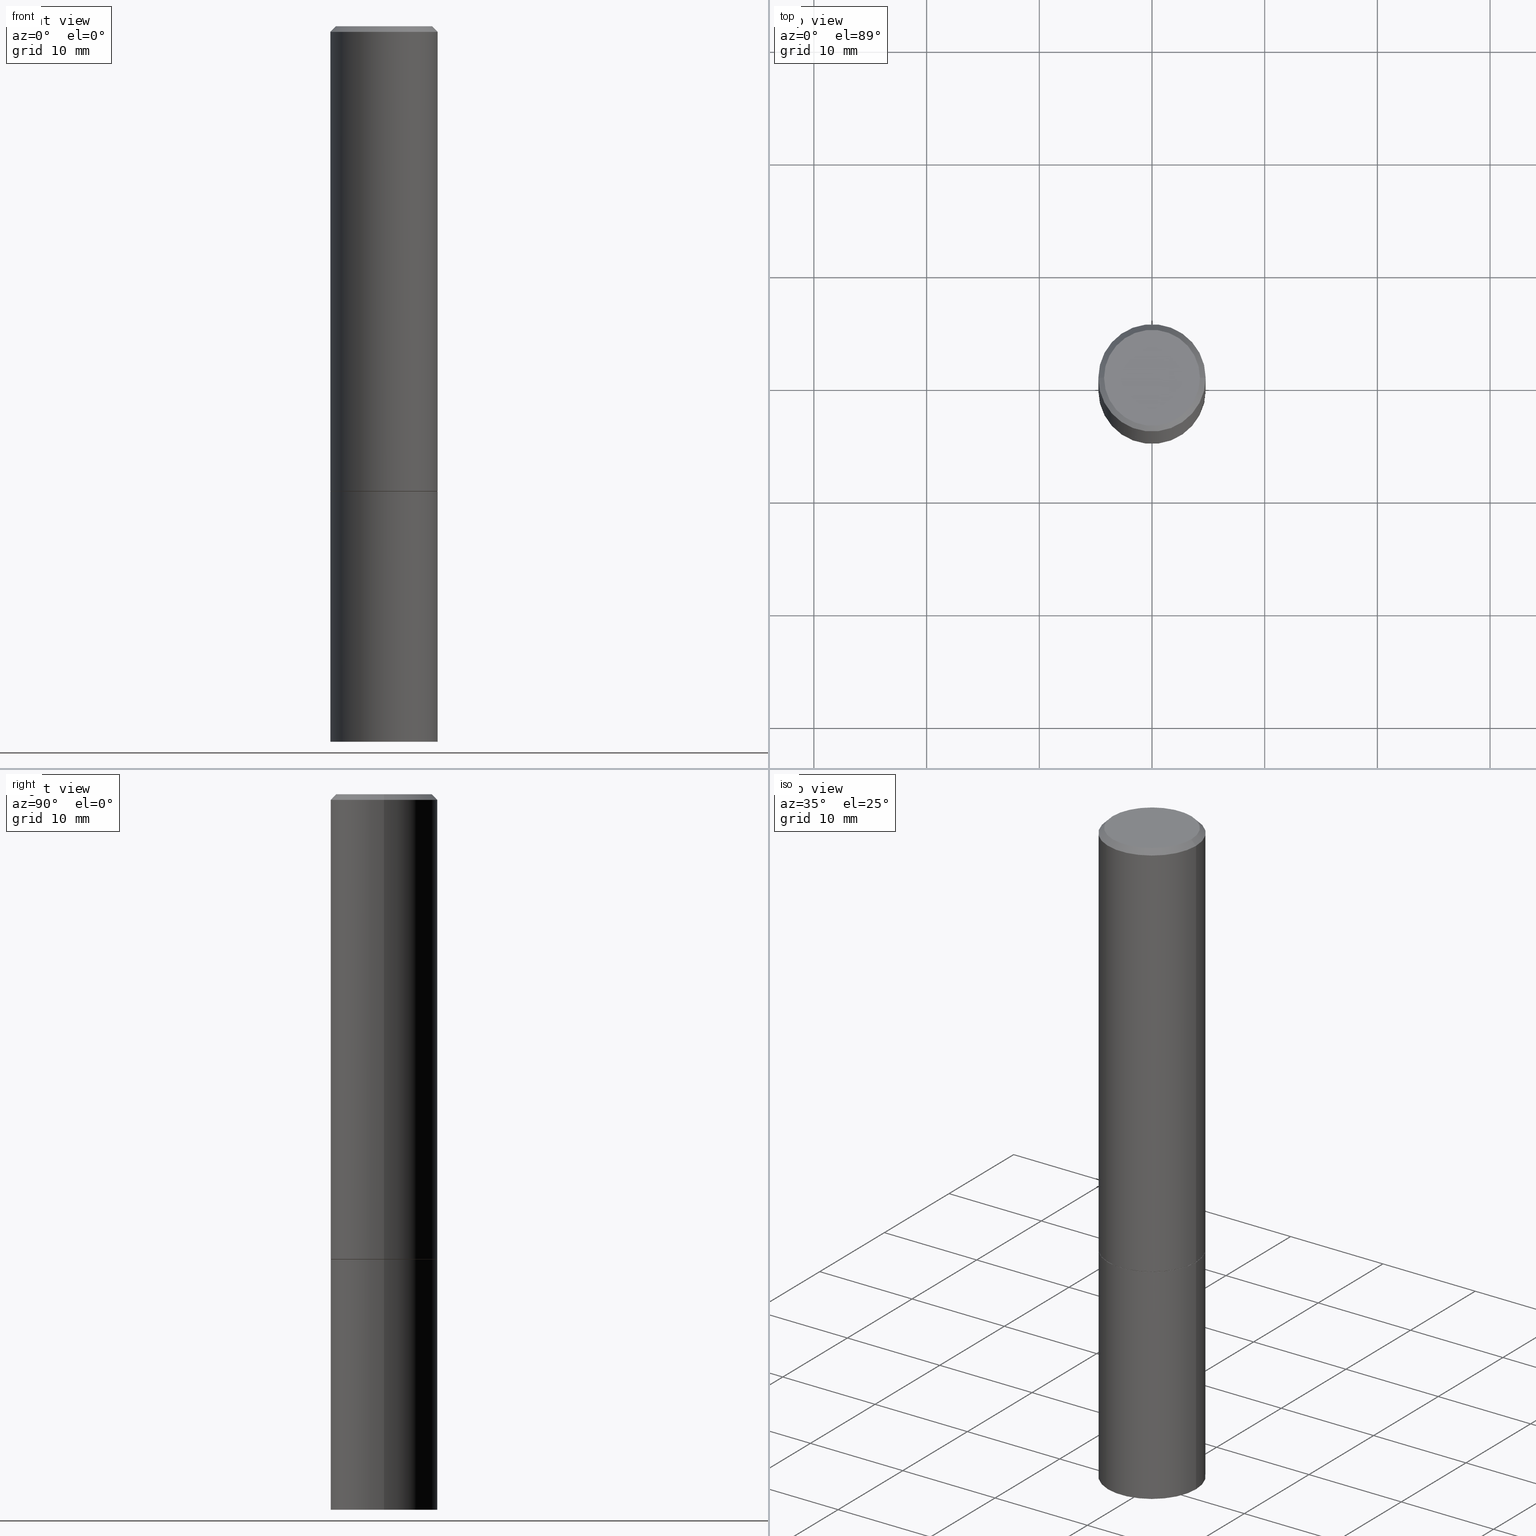
[diagram: canonical four-view strip — front | top / right | iso, engineering-drawing reading convention]
A machine part, canonical four-view strip (front | top / right | iso — engineering-drawing reading convention). The complete STEP part file that produces these views, byte-faithful:
ISO-10303-21;
HEADER;
FILE_DESCRIPTION (( 'STEP AP203' ),
    '1' );
FILE_NAME ('35285.STEP',
    '2024-02-27T18:21:54',
    ( '' ),
    ( '' ),
    'SwSTEP 2.0',
    'SolidWorks 2023',
    '' );
FILE_SCHEMA (( 'CONFIG_CONTROL_DESIGN' ));
ENDSEC;

DATA;
#1 = DIRECTION ( 'NONE',  ( 1.000000000000000000, -6.982962677686265922E-15, 4.876176775795935793E-29 ) ) ;
#2 = ORIENTED_EDGE ( 'NONE', *, *, #275, .F. ) ;
#3 = DIRECTION ( 'NONE',  ( -2.445468806185136597E-29, 3.491481338843145583E-15, 1.000000000000000000 ) ) ;
#4 = AXIS2_PLACEMENT_3D ( 'NONE', #323, #25, #89 ) ;
#5 = CIRCLE ( 'NONE', #86, 0.1674999999999997879 ) ;
#6 = ORIENTED_EDGE ( 'NONE', *, *, #345, .T. ) ;
#7 = PERSON_AND_ORGANIZATION ( #154, #313 ) ;
#8 = DIRECTION ( 'NONE',  ( -1.000000000000000000, 6.982962677686265922E-15, -4.876176775795935793E-29 ) ) ;
#9 = VERTEX_POINT ( 'NONE', #129 ) ;
#10 = PERSON_AND_ORGANIZATION ( #154, #313 ) ;
#11 = FACE_OUTER_BOUND ( 'NONE', #320, .T. ) ;
#12 = DIRECTION ( 'NONE',  ( 1.000000000000000000, -6.982962677686269077E-15, 0.000000000000000000 ) ) ;
#13 = CARTESIAN_POINT ( 'NONE',  ( -0.1674999999999997879, 1.204561061900879272E-15, -8.301862719484101980E-30 ) ) ;
#14 = DIRECTION ( 'NONE',  ( 1.000000000000000000, -6.982962677686265922E-15, 4.876176775795935793E-29 ) ) ;
#15 = CARTESIAN_POINT ( 'NONE',  ( 0.1674999999999997879, -1.252653207992876908E-15, 8.469775550109228175E-30 ) ) ;
#16 = CLOSED_SHELL ( 'NONE', ( #190, #115, #153, #350, #208, #256, #88, #226 ) ) ;
#17 = CONICAL_SURFACE ( 'NONE', #163, 0.1874999999999997780, 0.7853981633974471688 ) ;
#18 = CARTESIAN_POINT ( 'NONE',  ( 1.169646248512448215E-15, 0.1674999999999997879, -5.848231242562260795E-16 ) ) ;
#19 = CIRCLE ( 'NONE', #327, 0.1875000000000000278 ) ;
#20 = APPROVAL_PERSON_ORGANIZATION ( #152, #263, #57 ) ;
#21 = VERTEX_POINT ( 'NONE', #158 ) ;
#22 = EDGE_LOOP ( 'NONE', ( #138, #362, #169, #290 ) ) ;
#23 = AXIS2_PLACEMENT_3D ( 'NONE', #349, #78, #1 ) ;
#24 = LOCAL_TIME ( 13, 21, 54.00000000000000000, #291 ) ;
#25 = DIRECTION ( 'NONE',  ( -2.445468806185136597E-29, 3.491481338843145583E-15, 1.000000000000000000 ) ) ;
#26 = CC_DESIGN_PERSON_AND_ORGANIZATION_ASSIGNMENT ( #193, #333, ( #67 ) ) ;
#27 = APPROVAL_DATE_TIME ( #55, #268 ) ;
#28 = CARTESIAN_POINT ( 'NONE',  ( -0.1875000000000000278, -5.868912631813800729E-15, -2.500000000000000000 ) ) ;
#29 = PERSON_AND_ORGANIZATION_ROLE ( 'creator' ) ;
#30 = CARTESIAN_POINT ( 'NONE',  ( 3.973886810050848091E-29, -5.673657175620113002E-15, -1.625000000000000222 ) ) ;
#31 = VECTOR ( 'NONE', #54, 39.37007874015748143 ) ;
#32 = APPROVAL_PERSON_ORGANIZATION ( #119, #237, #93 ) ;
#33 = ORIENTED_EDGE ( 'NONE', *, *, #360, .T. ) ;
#34 = ADVANCED_FACE ( 'NONE', ( #273 ), #310, .T. ) ;
#35 = PRODUCT_DEFINITION ( 'UNKNOWN', '', #229, #325 ) ;
#36 = DIRECTION ( 'NONE',  ( -2.445468806185136597E-29, 3.491481338843145583E-15, 1.000000000000000000 ) ) ;
#37 = LINE ( 'NONE', #58, #116 ) ;
#38 = LINE ( 'NONE', #242, #211 ) ;
#39 = EDGE_CURVE ( 'NONE', #87, #274, #162, .T. ) ;
#40 = EDGE_LOOP ( 'NONE', ( #52, #245 ) ) ;
#41 = DIRECTION ( 'NONE',  ( -2.445468806185136877E-29, 3.491481338843145188E-15, 1.000000000000000000 ) ) ;
#42 = CARTESIAN_POINT ( 'NONE',  ( 0.000000000000000000, 0.000000000000000000, 0.000000000000000000 ) ) ;
#43 = DIRECTION ( 'NONE',  ( -2.445468806185136597E-29, 3.491481338843145583E-15, 1.000000000000000000 ) ) ;
#44 = VECTOR ( 'NONE', #315, 39.37007874015748143 ) ;
#45 = EDGE_CURVE ( 'NONE', #274, #87, #239, .T. ) ;
#46 = CC_DESIGN_PERSON_AND_ORGANIZATION_ASSIGNMENT ( #53, #29, ( #229 ) ) ;
#47 = CARTESIAN_POINT ( 'NONE',  ( 0.1875000000000000278, -6.982962677686288010E-15, -1.625000000000000222 ) ) ;
#48 = APPROVAL_STATUS ( 'not_yet_approved' ) ;
#49 = PERSON_AND_ORGANIZATION ( #154, #313 ) ;
#50 = CIRCLE ( 'NONE', #77, 0.1875000000000000278 ) ;
#51 = AXIS2_PLACEMENT_3D ( 'NONE', #303, #139, #184 ) ;
#52 = ORIENTED_EDGE ( 'NONE', *, *, #173, .F. ) ;
#53 = PERSON_AND_ORGANIZATION ( #154, #313 ) ;
#54 = DIRECTION ( 'NONE',  ( 0.7071067811866320607, -2.468850131083142557E-15, 0.7071067811864629737 ) ) ;
#55 = DATE_AND_TIME ( #214, #170 ) ;
#56 = DIRECTION ( 'NONE',  ( 1.000000000000000000, -6.982962677686265133E-15, 0.000000000000000000 ) ) ;
#57 = APPROVAL_ROLE ( '' ) ;
#58 = CARTESIAN_POINT ( 'NONE',  ( -0.1874999999999997780, 1.239475875289310330E-15, -0.02000000000000004205 ) ) ;
#59 = MANIFOLD_SOLID_BREP ( 'Body-Move/Copy2[2]', #16 ) ;
#60 = CARTESIAN_POINT ( 'NONE',  ( 0.1875000000000000278, -6.979471196347444214E-15, -1.624000000000000110 ) ) ;
#61 = AXIS2_PLACEMENT_3D ( 'NONE', #331, #95, #326 ) ;
#62 = MANIFOLD_SOLID_BREP ( 'Body-Move/Copy2[1]', #306 ) ;
#63 = CARTESIAN_POINT ( 'NONE',  ( 3.971441341244662488E-29, -5.670165694281269206E-15, -1.624000000000000110 ) ) ;
#64 = DIRECTION ( 'NONE',  ( 1.000000000000000000, -6.982962677686269077E-15, 0.000000000000000000 ) ) ;
#65 = CC_DESIGN_PERSON_AND_ORGANIZATION_ASSIGNMENT ( #7, #216, ( #229 ) ) ;
#66 = CYLINDRICAL_SURFACE ( 'NONE', #299, 0.1874999999999999167 ) ;
#67 = PRODUCT ( '35285', '35285', '', ( #278 ) ) ;
#68 = CARTESIAN_POINT ( 'NONE',  ( 0.000000000000000000, 0.000000000000000000, 0.000000000000000000 ) ) ;
#69 = CARTESIAN_POINT ( 'NONE',  ( 4.890937612370283668E-31, -6.982962677686305168E-17, -0.02000000000000004205 ) ) ;
#70 = CARTESIAN_POINT ( 'NONE',  ( 3.973886810050846970E-29, -5.673657175620112213E-15, -1.625000000000000000 ) ) ;
#71 = VECTOR ( 'NONE', #166, 39.37007874015748143 ) ;
#72 = EDGE_CURVE ( 'NONE', #9, #274, #168, .T. ) ;
#73 = CC_DESIGN_APPROVAL ( #237, ( #300 ) ) ;
#74 = ORIENTED_EDGE ( 'NONE', *, *, #105, .F. ) ;
#75 = CARTESIAN_POINT ( 'NONE',  ( 4.890937612370283668E-31, -6.982962677686305168E-17, -0.02000000000000004205 ) ) ;
#76 = ORIENTED_EDGE ( 'NONE', *, *, #135, .T. ) ;
#77 = AXIS2_PLACEMENT_3D ( 'NONE', #96, #297, #359 ) ;
#78 = DIRECTION ( 'NONE',  ( -2.445468806185136597E-29, 3.491481338843145583E-15, 1.000000000000000000 ) ) ;
#79 = ORIENTED_EDGE ( 'NONE', *, *, #275, .T. ) ;
#80 = EDGE_CURVE ( 'NONE', #335, #112, #181, .T. ) ;
#81 = LINE ( 'NONE', #252, #71 ) ;
#82 = CYLINDRICAL_SURFACE ( 'NONE', #23, 0.1874999999999999167 ) ;
#83 = CONICAL_SURFACE ( 'NONE', #220, 0.1864999999999999714, 0.7853981633975678500 ) ;
#84 = CARTESIAN_POINT ( 'NONE',  ( 4.890937612370283668E-31, -6.982962677686305168E-17, -0.02000000000000004205 ) ) ;
#85 = CIRCLE ( 'NONE', #250, 0.1875000000000000278 ) ;
#86 = AXIS2_PLACEMENT_3D ( 'NONE', #68, #179, #178 ) ;
#87 = VERTEX_POINT ( 'NONE', #233 ) ;
#88 = ADVANCED_FACE ( 'NONE', ( #114 ), #164, .F. ) ;
#89 = DIRECTION ( 'NONE',  ( 1.000000000000000000, -6.982962677686266711E-15, 0.000000000000000000 ) ) ;
#90 = ORIENTED_EDGE ( 'NONE', *, *, #199, .F. ) ;
#91 = EDGE_CURVE ( 'NONE', #21, #167, #255, .T. ) ;
#92 = CARTESIAN_POINT ( 'NONE',  ( 0.000000000000000000, 0.000000000000000000, 0.000000000000000000 ) ) ;
#93 = APPROVAL_ROLE ( '' ) ;
#94 = DIRECTION ( 'NONE',  ( -2.445468806185136597E-29, 3.491481338843145583E-15, 1.000000000000000000 ) ) ;
#95 = DIRECTION ( 'NONE',  ( -2.445468806185136597E-29, 3.491481338843145583E-15, 1.000000000000000000 ) ) ;
#96 = CARTESIAN_POINT ( 'NONE',  ( 3.973886810050848091E-29, -5.673657175620113002E-15, -1.625000000000000222 ) ) ;
#97 = CARTESIAN_POINT ( 'NONE',  ( 3.973886810050846970E-29, -5.673657175620112213E-15, -1.625000000000000000 ) ) ;
#98 = AXIS2_PLACEMENT_3D ( 'NONE', #70, #94, #64 ) ;
#99 = APPLICATION_PROTOCOL_DEFINITION ( 'international standard', 'config_control_design', 1994, #347 ) ;
#100 = ORIENTED_EDGE ( 'NONE', *, *, #91, .F. ) ;
#101 = CC_DESIGN_PERSON_AND_ORGANIZATION_ASSIGNMENT ( #10, #264, ( #300 ) ) ;
#102 = ORIENTED_EDGE ( 'NONE', *, *, #345, .F. ) ;
#103 = CARTESIAN_POINT ( 'NONE',  ( 1.309305502066236145E-15, 0.1874999999999912847, -2.500000000000000444 ) ) ;
#104 = EDGE_CURVE ( 'NONE', #272, #335, #141, .T. ) ;
#105 = EDGE_CURVE ( 'NONE', #9, #167, #85, .T. ) ;
#106 = ORIENTED_EDGE ( 'NONE', *, *, #267, .T. ) ;
#107 = CARTESIAN_POINT ( 'NONE',  ( 1.309305502066214846E-15, 0.1874999999999943379, -1.625000000000000888 ) ) ;
#108 = ORIENTED_EDGE ( 'NONE', *, *, #39, .T. ) ;
#109 = EDGE_CURVE ( 'NONE', #167, #87, #81, .T. ) ;
#110 = DIRECTION ( 'NONE',  ( 1.000000000000000000, -6.982962677686266711E-15, 0.000000000000000000 ) ) ;
#111 = DIRECTION ( 'NONE',  ( 2.445468806185136597E-29, -3.491481338843145583E-15, -1.000000000000000000 ) ) ;
#112 = VERTEX_POINT ( 'NONE', #143 ) ;
#113 = DATE_AND_TIME ( #288, #24 ) ;
#114 = FACE_OUTER_BOUND ( 'NONE', #217, .T. ) ;
#115 = ADVANCED_FACE ( 'NONE', ( #230 ), #82, .T. ) ;
#116 = VECTOR ( 'NONE', #195, 39.37007874015748143 ) ;
#117 = LINE ( 'NONE', #235, #44 ) ;
#118 = ORIENTED_EDGE ( 'NONE', *, *, #246, .T. ) ;
#119 = PERSON_AND_ORGANIZATION ( #154, #313 ) ;
#120 = DIRECTION ( 'NONE',  ( -2.445468806185136597E-29, 3.491481338843145583E-15, 1.000000000000000000 ) ) ;
#121 = ADVANCED_FACE ( 'NONE', ( #11 ), #258, .F. ) ;
#122 = PLANE ( 'NONE',  #271 ) ;
#123 = AXIS2_PLACEMENT_3D ( 'NONE', #107, #319, #8 ) ;
#124 = DIRECTION ( 'NONE',  ( 1.000000000000000000, -6.982962677686265922E-15, 4.876176775795935793E-29 ) ) ;
#125 =( CONVERSION_BASED_UNIT ( 'INCH', #148 ) LENGTH_UNIT ( ) NAMED_UNIT ( #231 ) );
#126 = CIRCLE ( 'NONE', #342, 0.1864999999999999714 ) ;
#127 = LOCAL_TIME ( 13, 21, 54.00000000000000000, #172 ) ;
#128 = ORIENTED_EDGE ( 'NONE', *, *, #186, .T. ) ;
#129 = CARTESIAN_POINT ( 'NONE',  ( -0.1874999999999999722, -1.537730030978877023E-15, -1.624000000000000110 ) ) ;
#130 = ADVANCED_BREP_SHAPE_REPRESENTATION ( '35285', ( #62, #59, #51 ), #308 ) ;
#131 = CIRCLE ( 'NONE', #261, 0.1864999999999999714 ) ;
#132 = ORIENTED_EDGE ( 'NONE', *, *, #80, .T. ) ;
#133 = PERSON_AND_ORGANIZATION ( #154, #313 ) ;
#134 = DIRECTION ( 'NONE',  ( -2.438088387897960049E-29, 3.491481338843145188E-15, 1.000000000000000000 ) ) ;
#135 = EDGE_CURVE ( 'NONE', #204, #272, #145, .T. ) ;
#136 = COORDINATED_UNIVERSAL_TIME_OFFSET ( 5, 0, .BEHIND. ) ;
#137 = FACE_OUTER_BOUND ( 'NONE', #149, .T. ) ;
#138 = ORIENTED_EDGE ( 'NONE', *, *, #72, .F. ) ;
#139 = DIRECTION ( 'NONE',  ( 0.000000000000000000, 0.000000000000000000, 1.000000000000000000 ) ) ;
#140 = LOCAL_TIME ( 13, 21, 54.00000000000000000, #136 ) ;
#141 = LINE ( 'NONE', #171, #357 ) ;
#142 = UNCERTAINTY_MEASURE_WITH_UNIT (LENGTH_MEASURE( 1.000000000000000082E-05 ), #125, 'distance_accuracy_value', 'NONE');
#143 = CARTESIAN_POINT ( 'NONE',  ( -0.1875000000000000278, -5.868912631813800729E-15, -1.625000000000000222 ) ) ;
#144 = CARTESIAN_POINT ( 'NONE',  ( 3.973886810050846970E-29, -5.673657175620112213E-15, -1.625000000000000000 ) ) ;
#145 = CIRCLE ( 'NONE', #150, 0.1875000000000000278 ) ;
#146 = DIRECTION ( 'NONE',  ( 1.000000000000000000, -6.982962677686265922E-15, 4.876176775795935793E-29 ) ) ;
#147 = FACE_OUTER_BOUND ( 'NONE', #221, .T. ) ;
#148 = LENGTH_MEASURE_WITH_UNIT ( LENGTH_MEASURE( 0.02539999999999999897 ), #266 );
#149 = EDGE_LOOP ( 'NONE', ( #307, #76, #248, #251 ) ) ;
#150 = AXIS2_PLACEMENT_3D ( 'NONE', #227, #341, #174 ) ;
#151 = CARTESIAN_POINT ( 'NONE',  ( 3.973886810050846970E-29, -5.673657175620112213E-15, -1.625000000000000000 ) ) ;
#152 = PERSON_AND_ORGANIZATION ( #154, #313 ) ;
#153 = ADVANCED_FACE ( 'NONE', ( #289 ), #209, .T. ) ;
#154 = PERSON ( 'UNSPECIFIED', 'UNSPECIFIED', 'UNSPECIFIED', ('UNSPECIFIED'), ('UNSPECIFIED'), ('UNSPECIFIED') ) ;
#155 =( NAMED_UNIT ( * ) PLANE_ANGLE_UNIT ( ) SI_UNIT ( $, .RADIAN. ) );
#156 = ORIENTED_EDGE ( 'NONE', *, *, #223, .T. ) ;
#157 = AXIS2_PLACEMENT_3D ( 'NONE', #366, #161, #338 ) ;
#158 = CARTESIAN_POINT ( 'NONE',  ( 0.1864999999999999714, -6.975979715008601207E-15, -1.625000000000000000 ) ) ;
#159 = ORIENTED_EDGE ( 'NONE', *, *, #186, .F. ) ;
#160 = ORIENTED_EDGE ( 'NONE', *, *, #223, .F. ) ;
#161 = DIRECTION ( 'NONE',  ( -2.445468806185136597E-29, 3.491481338843145583E-15, 1.000000000000000000 ) ) ;
#162 = CIRCLE ( 'NONE', #157, 0.1874999999999997780 ) ;
#163 = AXIS2_PLACEMENT_3D ( 'NONE', #69, #328, #262 ) ;
#164 = PLANE ( 'NONE',  #234 ) ;
#165 = PRODUCT_DEFINITION_SHAPE ( 'NONE', 'NONE',  #35 ) ;
#166 = DIRECTION ( 'NONE',  ( -2.445468806185136877E-29, 3.491481338843145188E-15, 1.000000000000000000 ) ) ;
#167 = VERTEX_POINT ( 'NONE', #60 ) ;
#168 = LINE ( 'NONE', #283, #312 ) ;
#169 = ORIENTED_EDGE ( 'NONE', *, *, #109, .T. ) ;
#170 = LOCAL_TIME ( 13, 21, 54.00000000000000000, #191 ) ;
#171 = CARTESIAN_POINT ( 'NONE',  ( 0.1875000000000000278, -1.309305502066175008E-15, 9.142831454617381013E-30 ) ) ;
#172 = COORDINATED_UNIVERSAL_TIME_OFFSET ( 5, 0, .BEHIND. ) ;
#173 = EDGE_CURVE ( 'NONE', #272, #204, #19, .T. ) ;
#174 = DIRECTION ( 'NONE',  ( 1.000000000000000000, -6.982962677686266711E-15, 0.000000000000000000 ) ) ;
#175 = CARTESIAN_POINT ( 'NONE',  ( -0.1874999999999997780, 1.239475875289310330E-15, -0.02000000000000004205 ) ) ;
#176 = ORIENTED_EDGE ( 'NONE', *, *, #80, .F. ) ;
#177 = CARTESIAN_POINT ( 'NONE',  ( -0.1875000000000000278, 1.332267629550188046E-15, -9.223003294227947991E-30 ) ) ;
#178 = DIRECTION ( 'NONE',  ( 1.000000000000000000, -6.982962677686266711E-15, 4.876176775795935793E-29 ) ) ;
#179 = DIRECTION ( 'NONE',  ( -2.445468806185136597E-29, 3.491481338843145583E-15, 1.000000000000000000 ) ) ;
#180 = CARTESIAN_POINT ( 'NONE',  ( 0.1875000000000000278, -1.003800884917403995E-14, -2.500000000000000000 ) ) ;
#181 = CIRCLE ( 'NONE', #4, 0.1875000000000000278 ) ;
#182 = CC_DESIGN_APPROVAL ( #268, ( #35 ) ) ;
#183 = CALENDAR_DATE ( 2024, 27, 2 ) ;
#184 = DIRECTION ( 'NONE',  ( 1.000000000000000000, 0.000000000000000000, 0.000000000000000000 ) ) ;
#185 = ORIENTED_EDGE ( 'NONE', *, *, #173, .T. ) ;
#186 = EDGE_CURVE ( 'NONE', #337, #274, #37, .T. ) ;
#187 = CONICAL_SURFACE ( 'NONE', #98, 0.1864999999999999714, 0.7853981633975678500 ) ;
#188 = VERTEX_POINT ( 'NONE', #317 ) ;
#189 = ORIENTED_EDGE ( 'NONE', *, *, #39, .F. ) ;
#190 = ADVANCED_FACE ( 'NONE', ( #259 ), #83, .T. ) ;
#191 = COORDINATED_UNIVERSAL_TIME_OFFSET ( 5, 0, .BEHIND. ) ;
#192 = AXIS2_PLACEMENT_3D ( 'NONE', #84, #111, #196 ) ;
#193 = PERSON_AND_ORGANIZATION ( #154, #313 ) ;
#194 = PRODUCT_RELATED_PRODUCT_CATEGORY ( 'detail', '', ( #67 ) ) ;
#195 = DIRECTION ( 'NONE',  ( -0.7071067811865466846, 2.468850131082247989E-15, -0.7071067811865483499 ) ) ;
#196 = DIRECTION ( 'NONE',  ( -1.000000000000000000, 6.982962677686265133E-15, 0.000000000000000000 ) ) ;
#197 = APPROVAL_STATUS ( 'not_yet_approved' ) ;
#198 = EDGE_LOOP ( 'NONE', ( #281, #6, #363, #74 ) ) ;
#199 = EDGE_CURVE ( 'NONE', #232, #87, #117, .T. ) ;
#200 = VECTOR ( 'NONE', #41, 39.37007874015748143 ) ;
#201 = DIRECTION ( 'NONE',  ( -2.445468806185136877E-29, 3.491481338843145188E-15, 1.000000000000000000 ) ) ;
#202 = CALENDAR_DATE ( 2024, 27, 2 ) ;
#203 = DIRECTION ( 'NONE',  ( 1.000000000000000000, -6.982962677686265922E-15, 4.876176775795935793E-29 ) ) ;
#204 = VERTEX_POINT ( 'NONE', #28 ) ;
#205 = ADVANCED_FACE ( 'NONE', ( #137 ), #346, .T. ) ;
#206 = DIRECTION ( 'NONE',  ( 2.438088387897960049E-29, -3.491481338843145188E-15, -1.000000000000000000 ) ) ;
#207 = SHAPE_DEFINITION_REPRESENTATION ( #165, #130 ) ;
#208 = ADVANCED_FACE ( 'NONE', ( #356 ), #66, .T. ) ;
#209 = CONICAL_SURFACE ( 'NONE', #192, 0.1874999999999997780, 0.7853981633974471688 ) ;
#210 = FACE_OUTER_BOUND ( 'NONE', #224, .T. ) ;
#211 = VECTOR ( 'NONE', #330, 39.37007874015748143 ) ;
#212 = DIRECTION ( 'NONE',  ( -2.445468806185136597E-29, 3.491481338843145583E-15, 1.000000000000000000 ) ) ;
#213 = DIRECTION ( 'NONE',  ( -2.445468806185136597E-29, 3.491481338843145583E-15, 1.000000000000000000 ) ) ;
#214 = CALENDAR_DATE ( 2024, 27, 2 ) ;
#215 = APPLICATION_CONTEXT ( 'configuration controlled 3d designs of mechanical parts and assemblies' ) ;
#216 = PERSON_AND_ORGANIZATION_ROLE ( 'design_supplier' ) ;
#217 = EDGE_LOOP ( 'NONE', ( #160, #102 ) ) ;
#218 = EDGE_CURVE ( 'NONE', #112, #335, #50, .T. ) ;
#219 = DATE_TIME_ROLE ( 'creation_date' ) ;
#220 = AXIS2_PLACEMENT_3D ( 'NONE', #144, #260, #12 ) ;
#221 = EDGE_LOOP ( 'NONE', ( #185, #106, #176, #247 ) ) ;
#222 = ORIENTED_EDGE ( 'NONE', *, *, #72, .T. ) ;
#223 = EDGE_CURVE ( 'NONE', #21, #188, #126, .T. ) ;
#224 = EDGE_LOOP ( 'NONE', ( #90, #2, #128, #284 ) ) ;
#225 = ORIENTED_EDGE ( 'NONE', *, *, #109, .F. ) ;
#226 = ADVANCED_FACE ( 'NONE', ( #240 ), #122, .F. ) ;
#227 = CARTESIAN_POINT ( 'NONE',  ( 6.113672015462842613E-29, -8.728703347107864943E-15, -2.500000000000000000 ) ) ;
#228 = DATE_AND_TIME ( #254, #140 ) ;
#229 = PRODUCT_DEFINITION_FORMATION_WITH_SPECIFIED_SOURCE ( 'ANY', '', #67, .NOT_KNOWN. ) ;
#230 = FACE_OUTER_BOUND ( 'NONE', #305, .T. ) ;
#231 = DIMENSIONAL_EXPONENTS ( 1.000000000000000000, 0.000000000000000000, 0.000000000000000000, 0.000000000000000000, 0.000000000000000000, 0.000000000000000000, 0.000000000000000000 ) ;
#232 = VERTEX_POINT ( 'NONE', #15 ) ;
#233 = CARTESIAN_POINT ( 'NONE',  ( 0.1874999999999997780, -1.356173001359023691E-15, -0.02000000000000004205 ) ) ;
#234 = AXIS2_PLACEMENT_3D ( 'NONE', #30, #134, #203 ) ;
#235 = CARTESIAN_POINT ( 'NONE',  ( 0.1874999999999997780, -1.356173001359023691E-15, -0.02000000000000004205 ) ) ;
#236 = SECURITY_CLASSIFICATION_LEVEL ( 'unclassified' ) ;
#237 = APPROVAL ( #197, 'UNSPECIFIED' ) ;
#238 = DIRECTION ( 'NONE',  ( -2.445468806185136597E-29, 3.491481338843145583E-15, 1.000000000000000000 ) ) ;
#239 = CIRCLE ( 'NONE', #321, 0.1874999999999997780 ) ;
#240 = FACE_OUTER_BOUND ( 'NONE', #365, .T. ) ;
#241 = CIRCLE ( 'NONE', #294, 0.1674999999999997879 ) ;
#242 = CARTESIAN_POINT ( 'NONE',  ( -0.1864999999999999714, -4.348494973427525372E-15, -1.625000000000000000 ) ) ;
#243 = CYLINDRICAL_SURFACE ( 'NONE', #352, 0.1875000000000000278 ) ;
#244 = APPROVAL_STATUS ( 'not_yet_approved' ) ;
#245 = ORIENTED_EDGE ( 'NONE', *, *, #135, .F. ) ;
#246 = EDGE_CURVE ( 'NONE', #167, #9, #285, .T. ) ;
#247 = ORIENTED_EDGE ( 'NONE', *, *, #104, .F. ) ;
#248 = ORIENTED_EDGE ( 'NONE', *, *, #104, .T. ) ;
#249 = DIRECTION ( 'NONE',  ( -1.000000000000000000, 6.982962677686265922E-15, -4.876176775795935793E-29 ) ) ;
#250 = AXIS2_PLACEMENT_3D ( 'NONE', #63, #36, #110 ) ;
#251 = ORIENTED_EDGE ( 'NONE', *, *, #218, .F. ) ;
#252 = CARTESIAN_POINT ( 'NONE',  ( 0.1874999999999999167, -1.309305502066174219E-15, 9.142831454617375408E-30 ) ) ;
#253 = EDGE_LOOP ( 'NONE', ( #156, #287, #293, #100 ) ) ;
#254 = CALENDAR_DATE ( 2024, 27, 2 ) ;
#255 = LINE ( 'NONE', #277, #31 ) ;
#256 = ADVANCED_FACE ( 'NONE', ( #265 ), #187, .T. ) ;
#257 = CC_DESIGN_DATE_AND_TIME_ASSIGNMENT ( #228, #219, ( #35 ) ) ;
#258 = PLANE ( 'NONE',  #123 ) ;
#259 = FACE_OUTER_BOUND ( 'NONE', #253, .T. ) ;
#260 = DIRECTION ( 'NONE',  ( -2.445468806185136597E-29, 3.491481338843145583E-15, 1.000000000000000000 ) ) ;
#261 = AXIS2_PLACEMENT_3D ( 'NONE', #151, #120, #270 ) ;
#262 = DIRECTION ( 'NONE',  ( -1.000000000000000000, 6.982962677686265133E-15, 0.000000000000000000 ) ) ;
#263 = APPROVAL ( #244, 'UNSPECIFIED' ) ;
#264 = PERSON_AND_ORGANIZATION_ROLE ( 'classification_officer' ) ;
#265 = FACE_OUTER_BOUND ( 'NONE', #198, .T. ) ;
#266 =( LENGTH_UNIT ( ) NAMED_UNIT ( * ) SI_UNIT ( $, .METRE. ) );
#267 = EDGE_CURVE ( 'NONE', #204, #112, #295, .T. ) ;
#268 = APPROVAL ( #48, 'UNSPECIFIED' ) ;
#269 = CARTESIAN_POINT ( 'NONE',  ( 0.000000000000000000, 0.000000000000000000, 0.000000000000000000 ) ) ;
#270 = DIRECTION ( 'NONE',  ( 1.000000000000000000, -6.982962677686269077E-15, 0.000000000000000000 ) ) ;
#271 = AXIS2_PLACEMENT_3D ( 'NONE', #18, #206, #292 ) ;
#272 = VERTEX_POINT ( 'NONE', #180 ) ;
#273 = FACE_OUTER_BOUND ( 'NONE', #40, .T. ) ;
#274 = VERTEX_POINT ( 'NONE', #175 ) ;
#275 = EDGE_CURVE ( 'NONE', #337, #232, #241, .T. ) ;
#276 = APPROVAL_PERSON_ORGANIZATION ( #133, #268, #314 ) ;
#277 = CARTESIAN_POINT ( 'NONE',  ( 0.1864999999999999714, -6.975979715008601207E-15, -1.625000000000000000 ) ) ;
#278 = MECHANICAL_CONTEXT ( 'NONE', #215, 'mechanical' ) ;
#279 = CARTESIAN_POINT ( 'NONE',  ( 6.113672015462842613E-29, -8.728703347107864943E-15, -2.500000000000000000 ) ) ;
#280 = ADVANCED_FACE ( 'NONE', ( #147 ), #243, .T. ) ;
#281 = ORIENTED_EDGE ( 'NONE', *, *, #329, .F. ) ;
#282 = DATE_AND_TIME ( #183, #302 ) ;
#283 = CARTESIAN_POINT ( 'NONE',  ( -0.1874999999999999167, 1.332267629550187257E-15, -9.223003294227943787E-30 ) ) ;
#284 = ORIENTED_EDGE ( 'NONE', *, *, #45, .T. ) ;
#285 = CIRCLE ( 'NONE', #61, 0.1875000000000000278 ) ;
#286 = DIRECTION ( 'NONE',  ( 1.000000000000000000, -6.982962677686266711E-15, 0.000000000000000000 ) ) ;
#287 = ORIENTED_EDGE ( 'NONE', *, *, #329, .T. ) ;
#288 = CALENDAR_DATE ( 2024, 27, 2 ) ;
#289 = FACE_OUTER_BOUND ( 'NONE', #318, .T. ) ;
#290 = ORIENTED_EDGE ( 'NONE', *, *, #45, .F. ) ;
#291 = COORDINATED_UNIVERSAL_TIME_OFFSET ( 5, 0, .BEHIND. ) ;
#292 = DIRECTION ( 'NONE',  ( -1.000000000000000000, 6.982962677686265922E-15, -4.876176775795935793E-29 ) ) ;
#293 = ORIENTED_EDGE ( 'NONE', *, *, #246, .F. ) ;
#294 = AXIS2_PLACEMENT_3D ( 'NONE', #42, #238, #361 ) ;
#295 = LINE ( 'NONE', #177, #200 ) ;
#296 = DATE_TIME_ROLE ( 'classification_date' ) ;
#297 = DIRECTION ( 'NONE',  ( -2.445468806185136597E-29, 3.491481338843145583E-15, 1.000000000000000000 ) ) ;
#298 = DIRECTION ( 'NONE',  ( 1.000000000000000000, -6.982962677686269077E-15, 0.000000000000000000 ) ) ;
#299 = AXIS2_PLACEMENT_3D ( 'NONE', #92, #355, #146 ) ;
#300 = SECURITY_CLASSIFICATION ( '', '', #236 ) ;
#301 = CARTESIAN_POINT ( 'NONE',  ( 0.000000000000000000, 0.000000000000000000, 0.000000000000000000 ) ) ;
#302 = LOCAL_TIME ( 13, 21, 54.00000000000000000, #344 ) ;
#303 = CARTESIAN_POINT ( 'NONE',  ( 0.000000000000000000, 0.000000000000000000, 0.000000000000000000 ) ) ;
#304 = APPLICATION_PROTOCOL_DEFINITION ( 'international standard', 'config_control_design', 1994, #215 ) ;
#305 = EDGE_LOOP ( 'NONE', ( #118, #222, #189, #225 ) ) ;
#306 = CLOSED_SHELL ( 'NONE', ( #280, #34, #121, #205 ) ) ;
#307 = ORIENTED_EDGE ( 'NONE', *, *, #267, .F. ) ;
#308 =( GEOMETRIC_REPRESENTATION_CONTEXT ( 3 ) GLOBAL_UNCERTAINTY_ASSIGNED_CONTEXT ( ( #142 ) ) GLOBAL_UNIT_ASSIGNED_CONTEXT ( ( #125, #155, #340 ) ) REPRESENTATION_CONTEXT ( 'NONE', 'WORKASPACE' ) );
#309 = ORIENTED_EDGE ( 'NONE', *, *, #360, .F. ) ;
#310 = PLANE ( 'NONE',  #351 ) ;
#311 = APPROVAL_DATE_TIME ( #282, #263 ) ;
#312 = VECTOR ( 'NONE', #201, 39.37007874015748143 ) ;
#313 = ORGANIZATION ( 'UNSPECIFIED', 'UNSPECIFIED', '' ) ;
#314 = APPROVAL_ROLE ( '' ) ;
#315 = DIRECTION ( 'NONE',  ( 0.7071067811865466846, -7.319954787623252890E-15, -0.7071067811865483499 ) ) ;
#316 = PERSON_AND_ORGANIZATION_ROLE ( 'creator' ) ;
#317 = CARTESIAN_POINT ( 'NONE',  ( -0.1864999999999999714, -4.343196519079303759E-15, -1.625000000000000000 ) ) ;
#318 = EDGE_LOOP ( 'NONE', ( #309, #324, #108, #159 ) ) ;
#319 = DIRECTION ( 'NONE',  ( 2.438088387897960049E-29, -3.491481338843145188E-15, -1.000000000000000000 ) ) ;
#320 = EDGE_LOOP ( 'NONE', ( #132, #339 ) ) ;
#321 = AXIS2_PLACEMENT_3D ( 'NONE', #75, #353, #56 ) ;
#322 = DATE_AND_TIME ( #202, #127 ) ;
#323 = CARTESIAN_POINT ( 'NONE',  ( 3.973886810050848091E-29, -5.673657175620113002E-15, -1.625000000000000222 ) ) ;
#324 = ORIENTED_EDGE ( 'NONE', *, *, #199, .T. ) ;
#325 = DESIGN_CONTEXT ( 'detailed design', #347, 'design' ) ;
#326 = DIRECTION ( 'NONE',  ( 1.000000000000000000, -6.982962677686266711E-15, 0.000000000000000000 ) ) ;
#327 = AXIS2_PLACEMENT_3D ( 'NONE', #279, #3, #286 ) ;
#328 = DIRECTION ( 'NONE',  ( 2.445468806185136597E-29, -3.491481338843145583E-15, -1.000000000000000000 ) ) ;
#329 = EDGE_CURVE ( 'NONE', #188, #9, #38, .T. ) ;
#330 = DIRECTION ( 'NONE',  ( -0.7071067811866320607, 7.493145998870660238E-15, 0.7071067811864629737 ) ) ;
#331 = CARTESIAN_POINT ( 'NONE',  ( 3.971441341244662488E-29, -5.670165694281269206E-15, -1.624000000000000110 ) ) ;
#332 = AXIS2_PLACEMENT_3D ( 'NONE', #269, #43, #124 ) ;
#333 = PERSON_AND_ORGANIZATION_ROLE ( 'design_owner' ) ;
#334 = CC_DESIGN_PERSON_AND_ORGANIZATION_ASSIGNMENT ( #49, #316, ( #35 ) ) ;
#335 = VERTEX_POINT ( 'NONE', #47 ) ;
#336 = DIRECTION ( 'NONE',  ( 2.438088387897960049E-29, -3.491481338843145188E-15, -1.000000000000000000 ) ) ;
#337 = VERTEX_POINT ( 'NONE', #13 ) ;
#338 = DIRECTION ( 'NONE',  ( 1.000000000000000000, -6.982962677686265133E-15, 0.000000000000000000 ) ) ;
#339 = ORIENTED_EDGE ( 'NONE', *, *, #218, .T. ) ;
#340 =( NAMED_UNIT ( * ) SI_UNIT ( $, .STERADIAN. ) SOLID_ANGLE_UNIT ( ) );
#341 = DIRECTION ( 'NONE',  ( -2.445468806185136597E-29, 3.491481338843145583E-15, 1.000000000000000000 ) ) ;
#342 = AXIS2_PLACEMENT_3D ( 'NONE', #97, #213, #298 ) ;
#343 = CC_DESIGN_SECURITY_CLASSIFICATION ( #300, ( #229 ) ) ;
#344 = COORDINATED_UNIVERSAL_TIME_OFFSET ( 5, 0, .BEHIND. ) ;
#345 = EDGE_CURVE ( 'NONE', #188, #21, #131, .T. ) ;
#346 = CYLINDRICAL_SURFACE ( 'NONE', #332, 0.1875000000000000278 ) ;
#347 = APPLICATION_CONTEXT ( 'configuration controlled 3d designs of mechanical parts and assemblies' ) ;
#348 = DIRECTION ( 'NONE',  ( -2.445468806185136877E-29, 3.491481338843145188E-15, 1.000000000000000000 ) ) ;
#349 = CARTESIAN_POINT ( 'NONE',  ( 0.000000000000000000, 0.000000000000000000, 0.000000000000000000 ) ) ;
#350 = ADVANCED_FACE ( 'NONE', ( #210 ), #17, .T. ) ;
#351 = AXIS2_PLACEMENT_3D ( 'NONE', #103, #336, #249 ) ;
#352 = AXIS2_PLACEMENT_3D ( 'NONE', #301, #212, #14 ) ;
#353 = DIRECTION ( 'NONE',  ( -2.445468806185136597E-29, 3.491481338843145583E-15, 1.000000000000000000 ) ) ;
#354 = APPROVAL_DATE_TIME ( #113, #237 ) ;
#355 = DIRECTION ( 'NONE',  ( -2.445468806185136597E-29, 3.491481338843145583E-15, 1.000000000000000000 ) ) ;
#356 = FACE_OUTER_BOUND ( 'NONE', #22, .T. ) ;
#357 = VECTOR ( 'NONE', #348, 39.37007874015748143 ) ;
#358 = CC_DESIGN_APPROVAL ( #263, ( #229 ) ) ;
#359 = DIRECTION ( 'NONE',  ( 1.000000000000000000, -6.982962677686266711E-15, 0.000000000000000000 ) ) ;
#360 = EDGE_CURVE ( 'NONE', #232, #337, #5, .T. ) ;
#361 = DIRECTION ( 'NONE',  ( 1.000000000000000000, -6.982962677686266711E-15, 4.876176775795935793E-29 ) ) ;
#362 = ORIENTED_EDGE ( 'NONE', *, *, #105, .T. ) ;
#363 = ORIENTED_EDGE ( 'NONE', *, *, #91, .T. ) ;
#364 = CC_DESIGN_DATE_AND_TIME_ASSIGNMENT ( #322, #296, ( #300 ) ) ;
#365 = EDGE_LOOP ( 'NONE', ( #79, #33 ) ) ;
#366 = CARTESIAN_POINT ( 'NONE',  ( 4.890937612370283668E-31, -6.982962677686305168E-17, -0.02000000000000004205 ) ) ;
ENDSEC;
END-ISO-10303-21;
